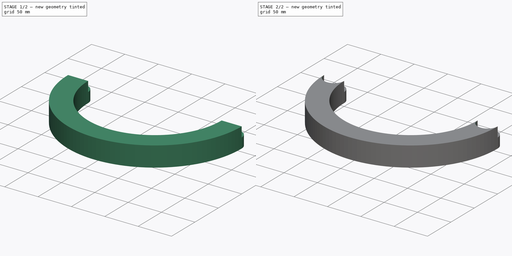
[diagram: build sequence overview — one tinted view per stage of 2, left to right]
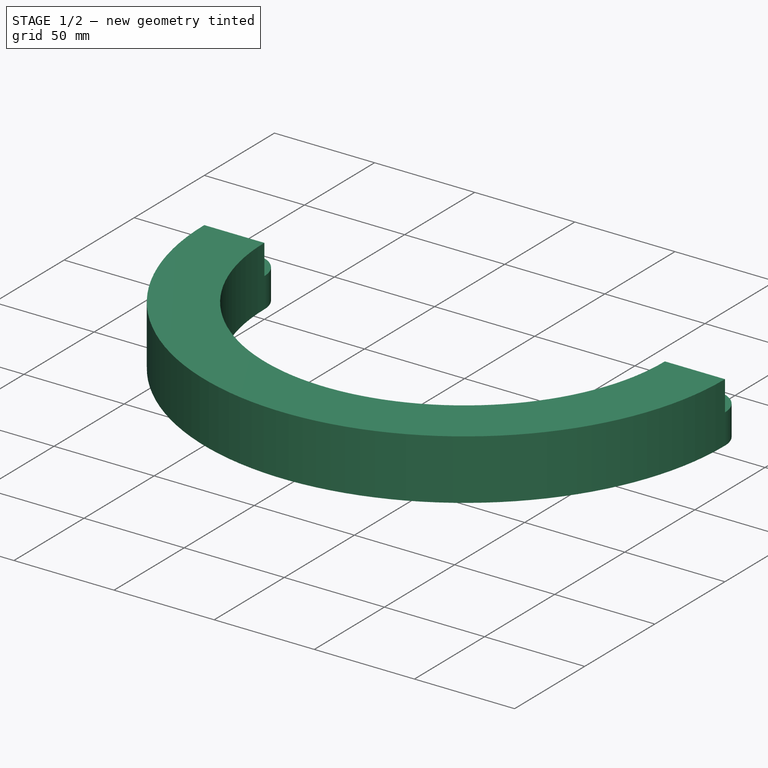
[diagram: stage 1 of 2 — iso view after this stage's code; geometry added in this stage tinted green]
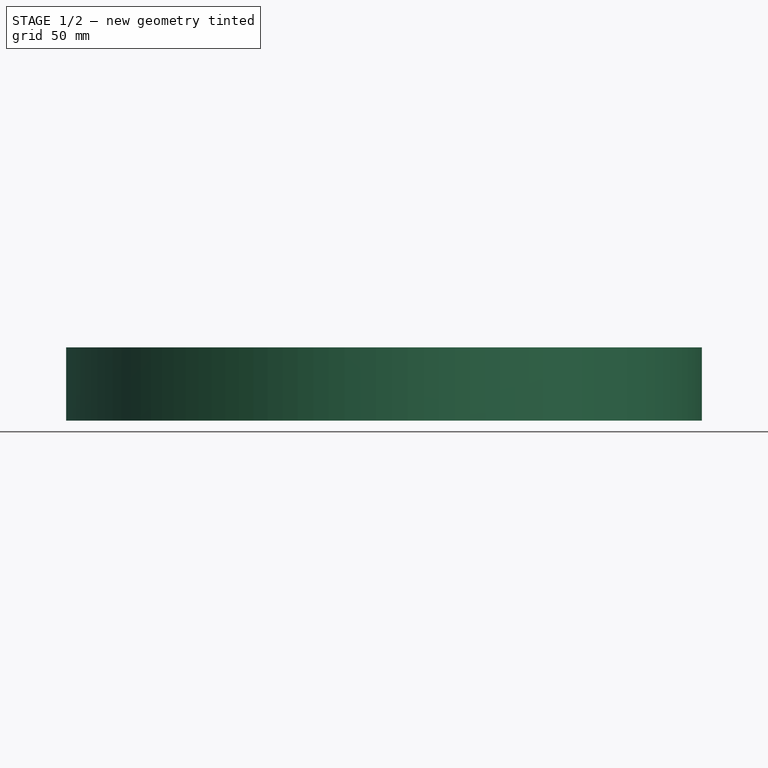
[diagram: stage 1 of 2 — front view after this stage's code; geometry added in this stage tinted green]
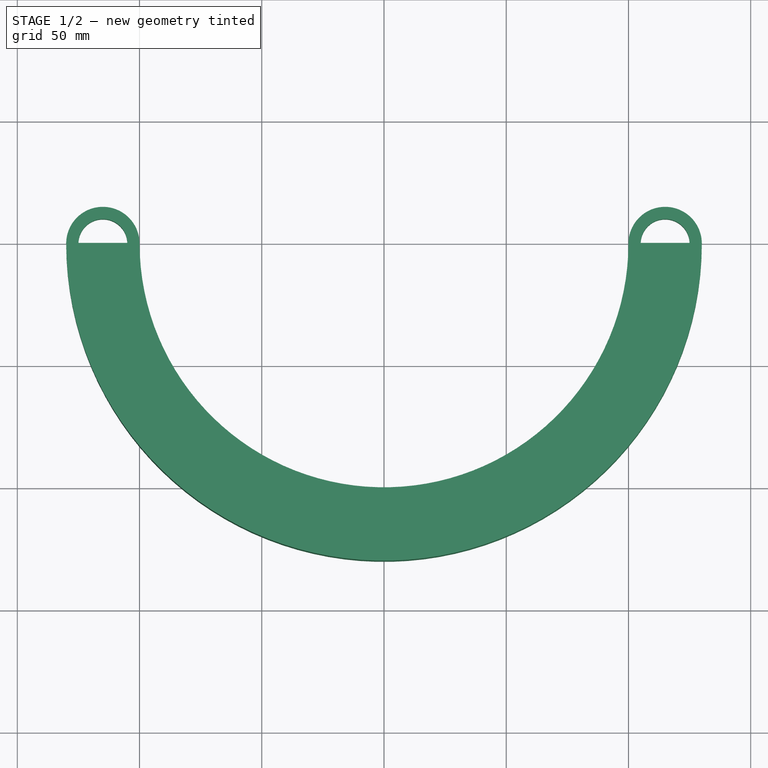
[diagram: stage 1 of 2 — top view after this stage's code; geometry added in this stage tinted green]
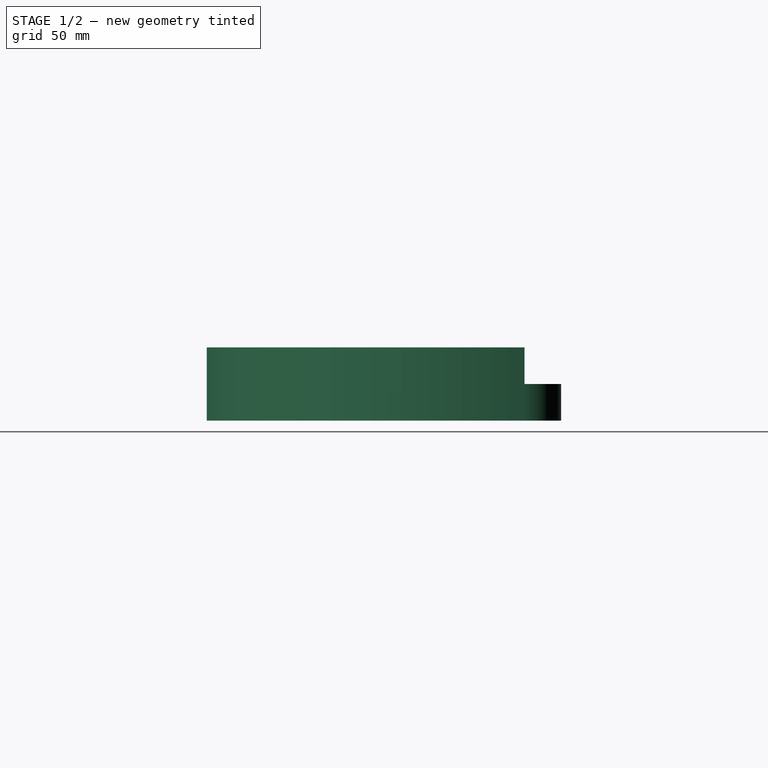
[diagram: stage 1 of 2 — right view after this stage's code; geometry added in this stage tinted green]
FCSTD DOCUMENT  (FreeCAD 0.16R6707 (Git))
Label: Holder
License: All rights reserved
LicenseURL: http://en.wikipedia.org/wiki/All_rights_reserved
objects: Sketcher::SketchObject×4, PartDesign::Pad×3, Spreadsheet::Sheet×1, PartDesign::Pocket×1
note: 12 computed .brp shape members not serialized (recipe doc carries the construction recipe); baked Part::Feature solids carry a one-line shape summary decoded from their .brp

FEATURE [Sketcher::SketchObject] Sketch
  expr: Constraints[2] = Spreadsheet.RI
  expr: Constraints[3] = Spreadsheet.RI
  expr: Constraints[5] = Spreadsheet.RA
  sketch-geometry (4):
    g0: ArcOfCircle CenterX=0 CenterY=0 CenterZ=0 NormalX=0 NormalY=0 NormalZ=1 Radius=100 StartAngle=3.14159 EndAngle=6.28319
    g1: ArcOfCircle CenterX=0 CenterY=0 CenterZ=0 NormalX=0 NormalY=0 NormalZ=1 Radius=130 StartAngle=3.14159 EndAngle=6.28319
    g2: LineSegment StartX=-130 StartY=-4.22218e-05 StartZ=0 EndX=-100 EndY=-4.22218e-05 EndZ=0
    g3: LineSegment StartX=100 StartY=0 StartZ=0 EndX=130 EndY=0 EndZ=0
  constraints (13):
    c: Coincident(g0,g-1)
    c: PointOnObject(g0,g-1)
    c: DistanceX(g0,g-1) = 100
    c: DistanceX(g-1,g0) = 100
    c: Coincident(g1,g-1)
    c: DistanceX(g-1,g1) = 130
    c: DistanceY(g-1,g1) = 0
    c: Coincident(g2,g0)
    c: Horizontal(g2)
    c: Coincident(g3,g1)
    c: Horizontal(g3)
    c: Coincident(g0,g3)
    c: Coincident(g1,g2)
FEATURE [PartDesign::Pad] Pad
  Length = 30
  Length2 = 100
  Sketch = -> Sketch
  Type = 0
  expr: Length = Spreadsheet.thick
FEATURE [Sketcher::SketchObject] Sketch003
  expr: Constraints[8] = Spreadsheet.RI + Spreadsheet.dR / 2
  expr: Constraints[4] = Spreadsheet.dR / 3
  expr: Constraints[2] = Spreadsheet.dR / 2
  expr: Constraints[0] = Spreadsheet.RI + Spreadsheet.dR / 2
  sketch-geometry (4):
    g0: Circle CenterX=-115 CenterY=0 CenterZ=0 NormalX=0 NormalY=0 NormalZ=1 Radius=15
    g1: Circle CenterX=-115 CenterY=0 CenterZ=0 NormalX=0 NormalY=0 NormalZ=1 Radius=10
    g2: Circle CenterX=115 CenterY=0 CenterZ=0 NormalX=0 NormalY=0 NormalZ=1 Radius=15
    g3: Circle CenterX=115 CenterY=0 CenterZ=0 NormalX=0 NormalY=0 NormalZ=1 Radius=10
  constraints (10):
    c: DistanceX(g0,g-1) = 115
    c: DistanceY(g-1,g0) = 0
    c: Radius(g0) = 15
    c: Coincident(g1,g0)
    c: Radius(g1) = 10
    c: Equal(g0,g2) = 15
    c: Coincident(g3,g2)
    c: Equal(g1,g3) = 10
    c: DistanceX(g-1,g2) = 115
    c: DistanceY(g-1,g2) = 0
FEATURE [PartDesign::Pad] Pad002
  Length = 15
  Length2 = 100
  Sketch = -> Sketch003
  Type = 0
  expr: Length = Spreadsheet.thick / 2
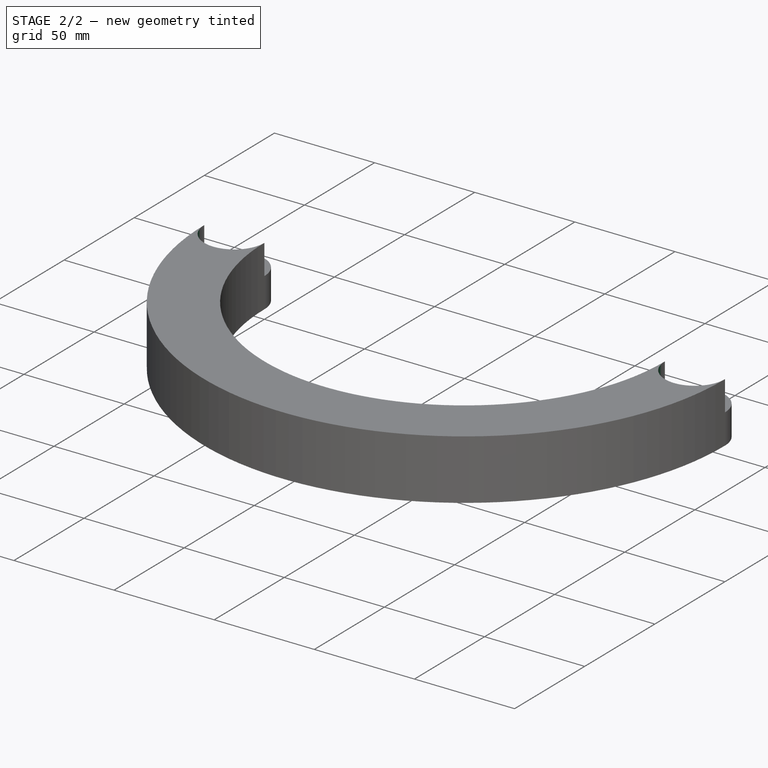
[diagram: stage 2 of 2 — iso view after this stage's code; geometry added in this stage tinted green]
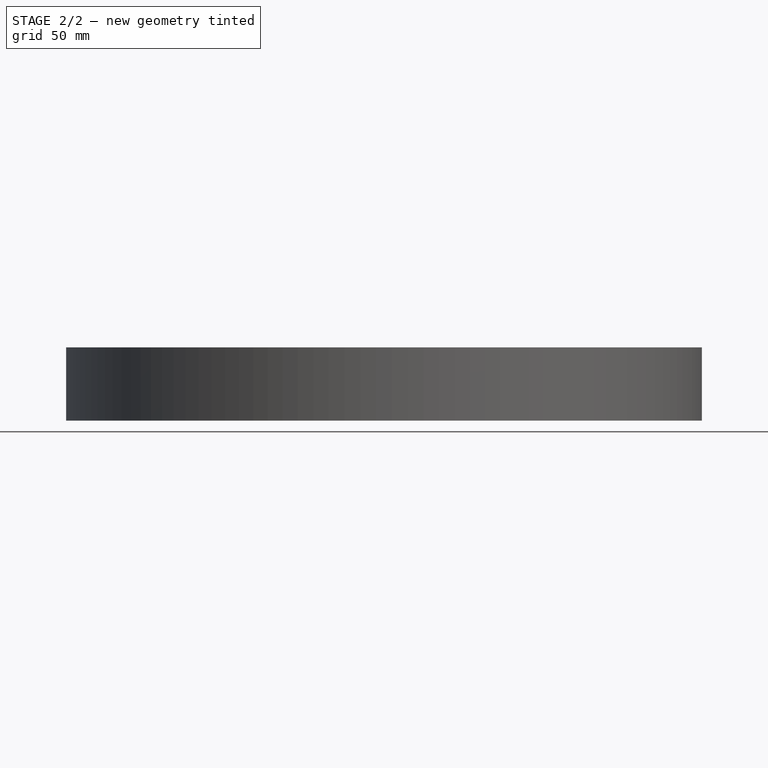
[diagram: stage 2 of 2 — front view after this stage's code; geometry added in this stage tinted green]
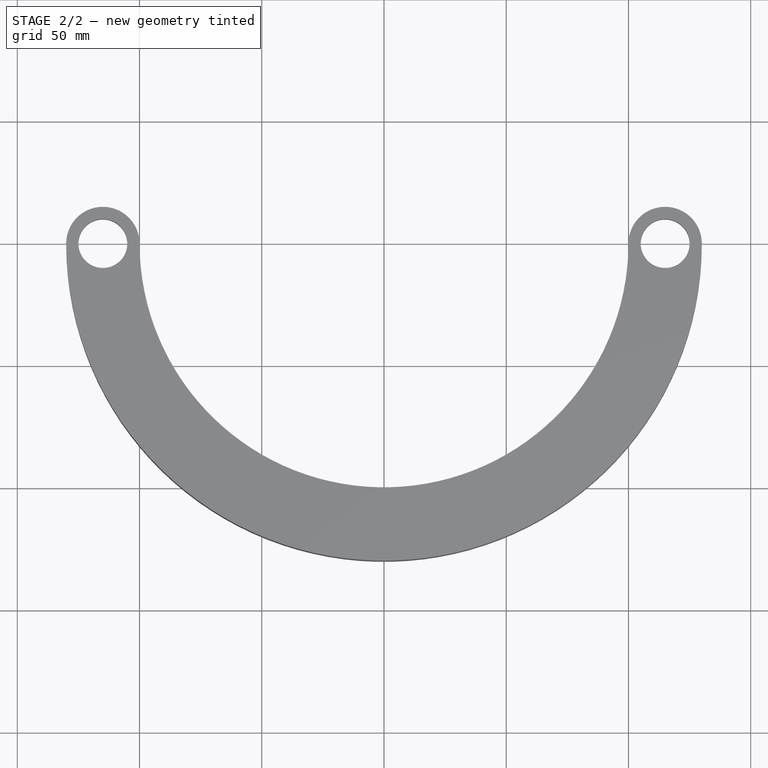
[diagram: stage 2 of 2 — top view after this stage's code; geometry added in this stage tinted green]
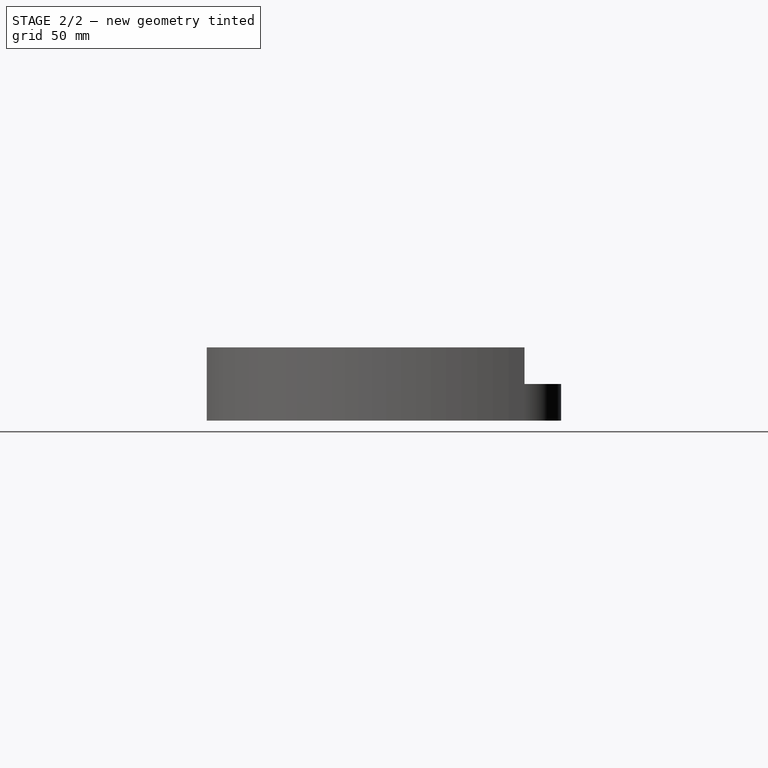
[diagram: stage 2 of 2 — right view after this stage's code; geometry added in this stage tinted green]
FEATURE [Spreadsheet::Sheet] Spreadsheet
  cells = A1(RI)==100mm; B1(RA)==RI + dR; C1(dR)==30mm; A2(thick)==30mm
FEATURE [Sketcher::SketchObject] Sketch001
  expr: Constraints[8] = Spreadsheet.RI + Spreadsheet.dR / 2
  expr: Constraints[4] = Spreadsheet.dR / 3
  expr: Constraints[2] = Spreadsheet.dR / 2
  expr: Constraints[0] = Spreadsheet.RI + Spreadsheet.dR / 2
  sketch-geometry (4):
    g0: Circle CenterX=-115 CenterY=0 CenterZ=0 NormalX=0 NormalY=0 NormalZ=1 Radius=15
    g1: Circle CenterX=-115 CenterY=0 CenterZ=0 NormalX=0 NormalY=0 NormalZ=1 Radius=10
    g2: Circle CenterX=115 CenterY=0 CenterZ=0 NormalX=0 NormalY=0 NormalZ=1 Radius=15
    g3: Circle CenterX=115 CenterY=0 CenterZ=0 NormalX=0 NormalY=0 NormalZ=1 Radius=10
  constraints (10):
    c: DistanceX(g0,g-1) = 115
    c: DistanceY(g-1,g0) = 0
    c: Radius(g0) = 15
    c: Coincident(g1,g0)
    c: Radius(g1) = 10
    c: Equal(g0,g2) = 15
    c: Coincident(g3,g2)
    c: Equal(g1,g3) = 10
    c: DistanceX(g-1,g2) = 115
    c: DistanceY(g-1,g2) = 0
FEATURE [PartDesign::Pad] Pad001
  Length = 15
  Length2 = 100
  Sketch = -> Sketch001
  Type = 0
  expr: Length = Spreadsheet.thick / 2
FEATURE [Sketcher::SketchObject] Sketch002
  Placement = pos=(0,0,30) rot=(0,0,1;0rad)
  Support = -> Pad [Face6]
  expr: Constraints[1] = Spreadsheet.dR / 2
  expr: Constraints[0] = Spreadsheet.RI + Spreadsheet.dR / 2
  sketch-geometry (4):
    g0: ArcOfCircle CenterX=-115 CenterY=0 CenterZ=0 NormalX=0 NormalY=0 NormalZ=1 Radius=15 StartAngle=3.14159 EndAngle=6.28319
    g1: ArcOfCircle CenterX=115 CenterY=0 CenterZ=0 NormalX=0 NormalY=0 NormalZ=1 Radius=15 StartAngle=3.14159 EndAngle=6.28319
    g2: LineSegment StartX=-100 StartY=0 StartZ=0 EndX=-130 EndY=0 EndZ=0
    g3: LineSegment StartX=100 StartY=0 StartZ=0 EndX=130 EndY=0 EndZ=0
  constraints (16):
    c: DistanceX(g0,g-1) = 115
    c: DistanceX(g0,g0) = 15
    c: DistanceY(g-1,g0) = 0
    c: DistanceY(g0,g0) = 0
    c: DistanceY(g0,g0) = 0
    c: Equal(g0,g1)
    c: DistanceX(g-1,g1) = 115
    c: DistanceY(g-1,g1) = 0
    c: DistanceY(g1,g1) = 0
    c: DistanceY(g1,g1) = 0
    c: Horizontal(g2)
    c: Coincident(g0,g2)
    c: Coincident(g0,g2)
    c: Horizontal(g3)
    c: Coincident(g1,g3)
    c: Coincident(g1,g3)
FEATURE [PartDesign::Pocket] Pocket
  Length = 30
  Sketch = -> Sketch002
  Type = 0
  expr: Length = Spreadsheet.thick
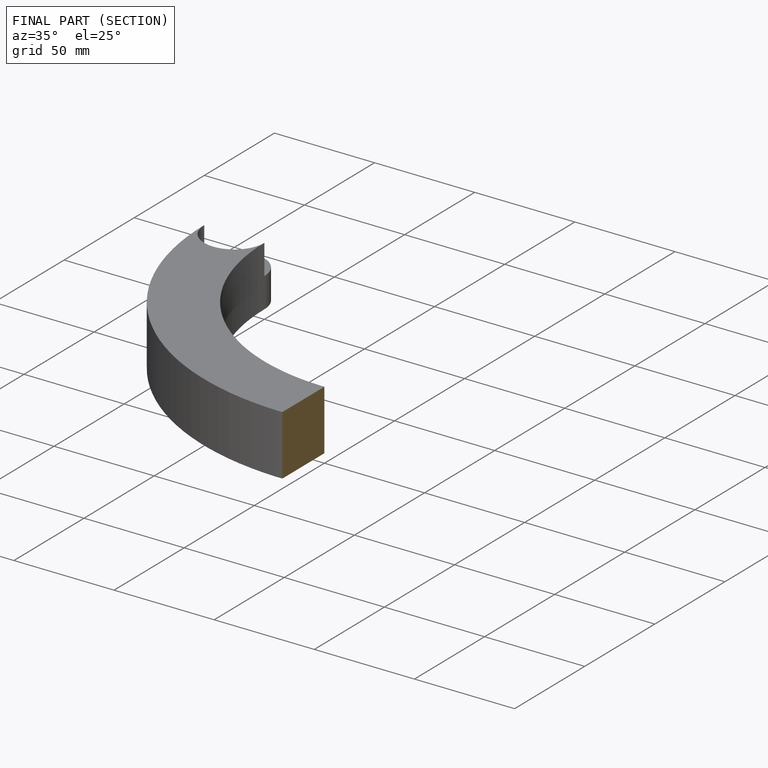
[diagram: finished part — half-section view (interior)]
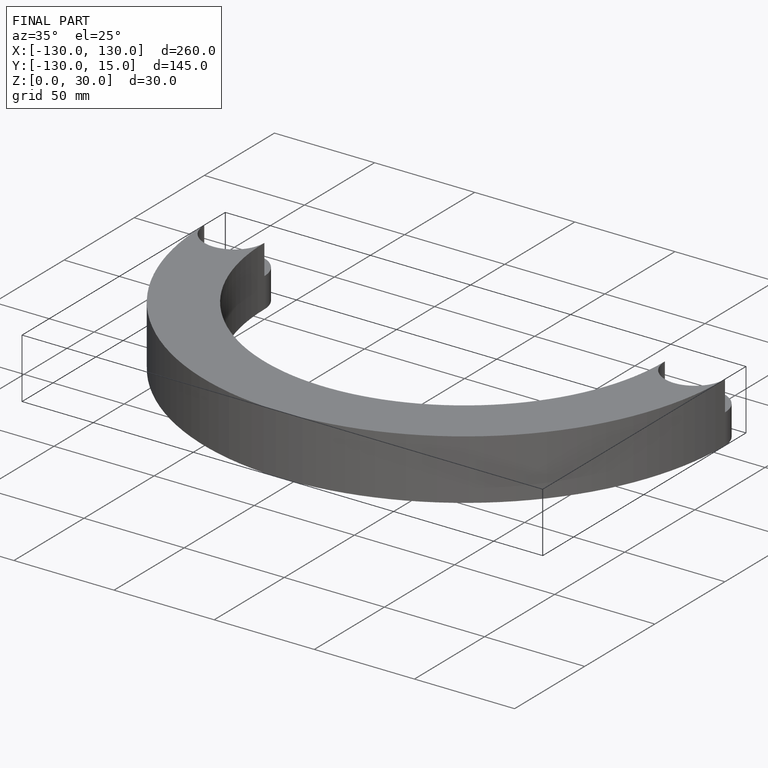
[diagram: finished part — iso view with bounding-box wireframe]
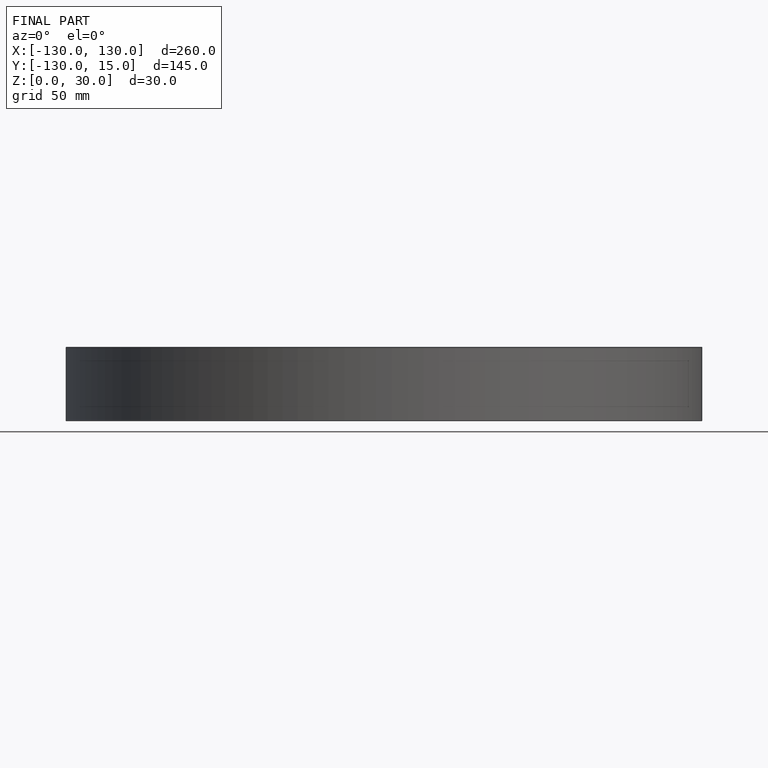
[diagram: finished part — front view with bounding-box wireframe]
